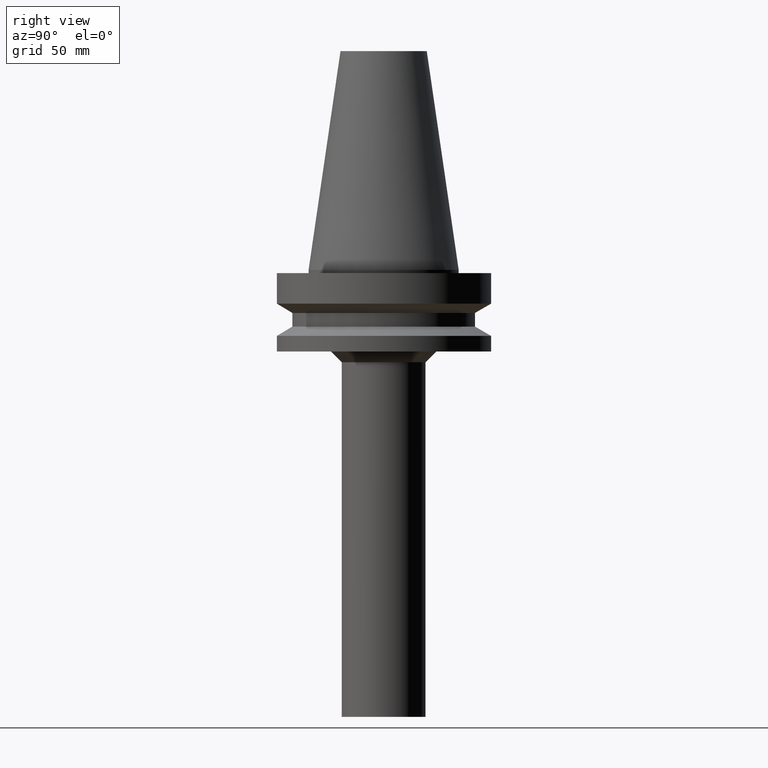
[diagram: clean part render]
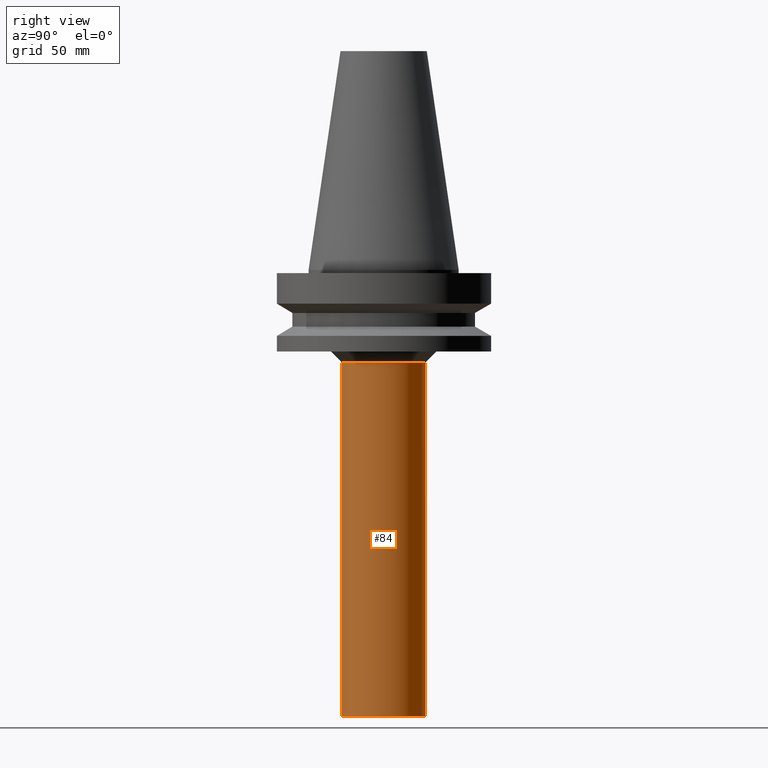
[diagram: same view with one face highlighted and labeled with its STEP entity id]
A machine part, right view. The second image highlights one B-rep face of the part: STEP entity #84.
In plain terms, the highlighted cylindrical surface (bore or boss wall) has radius 19.5 mm, axis along (-0, -0, 1).
Its self-contained STEP definition (entity closure, byte-faithful):
#84=ADVANCED_FACE('',(#116,#117),#118,.T.);
#116=FACE_BOUND('',#153,.T.);
#117=FACE_BOUND('',#154,.T.);
#118=CYLINDRICAL_SURFACE('',#155,19.5);
#153=EDGE_LOOP('',(#208));
#154=EDGE_LOOP('',(#209));
#155=AXIS2_PLACEMENT_3D('',#210,#211,#212);
#208=ORIENTED_EDGE('',*,*,#236,.F.);
#209=ORIENTED_EDGE('',*,*,#235,.T.);
#210=CARTESIAN_POINT('',(7.68465866464964E-015,1.53693173292993E-014,-125.5));
#211=DIRECTION('',(-6.12323399573677E-017,-1.22464679914735E-016,1.0));
#212=DIRECTION('',(-1.23259516440783E-032,1.0,1.22464679914735E-016));
#235=EDGE_CURVE('',#256,#256,#257,.T.);
#236=EDGE_CURVE('',#258,#258,#259,.T.);
#256=VERTEX_POINT('',#280);
#257=CIRCLE('',#281,19.5);
#258=VERTEX_POINT('',#282);
#259=CIRCLE('',#283,19.5);
#280=CARTESIAN_POINT('',(2.63299061816681E-015,19.5,-43.0));
#281=AXIS2_PLACEMENT_3D('',#313,#314,#315);
#282=CARTESIAN_POINT('',(1.27363267111325E-014,19.5,-208.0));
#283=AXIS2_PLACEMENT_3D('',#316,#317,#318);
#313=CARTESIAN_POINT('',(2.63299061816681E-015,5.26598123633362E-015,-43.0));
#314=DIRECTION('',(6.12323399573677E-017,1.22464679914735E-016,-1.0));
#315=DIRECTION('',(-1.23259516440783E-032,1.0,1.22464679914735E-016));
#316=CARTESIAN_POINT('',(1.27363267111325E-014,2.54726534222649E-014,-208.0));
#317=DIRECTION('',(6.12323399573677E-017,1.22464679914735E-016,-1.0));
#318=DIRECTION('',(-1.23259516440783E-032,1.0,1.22464679914735E-016));